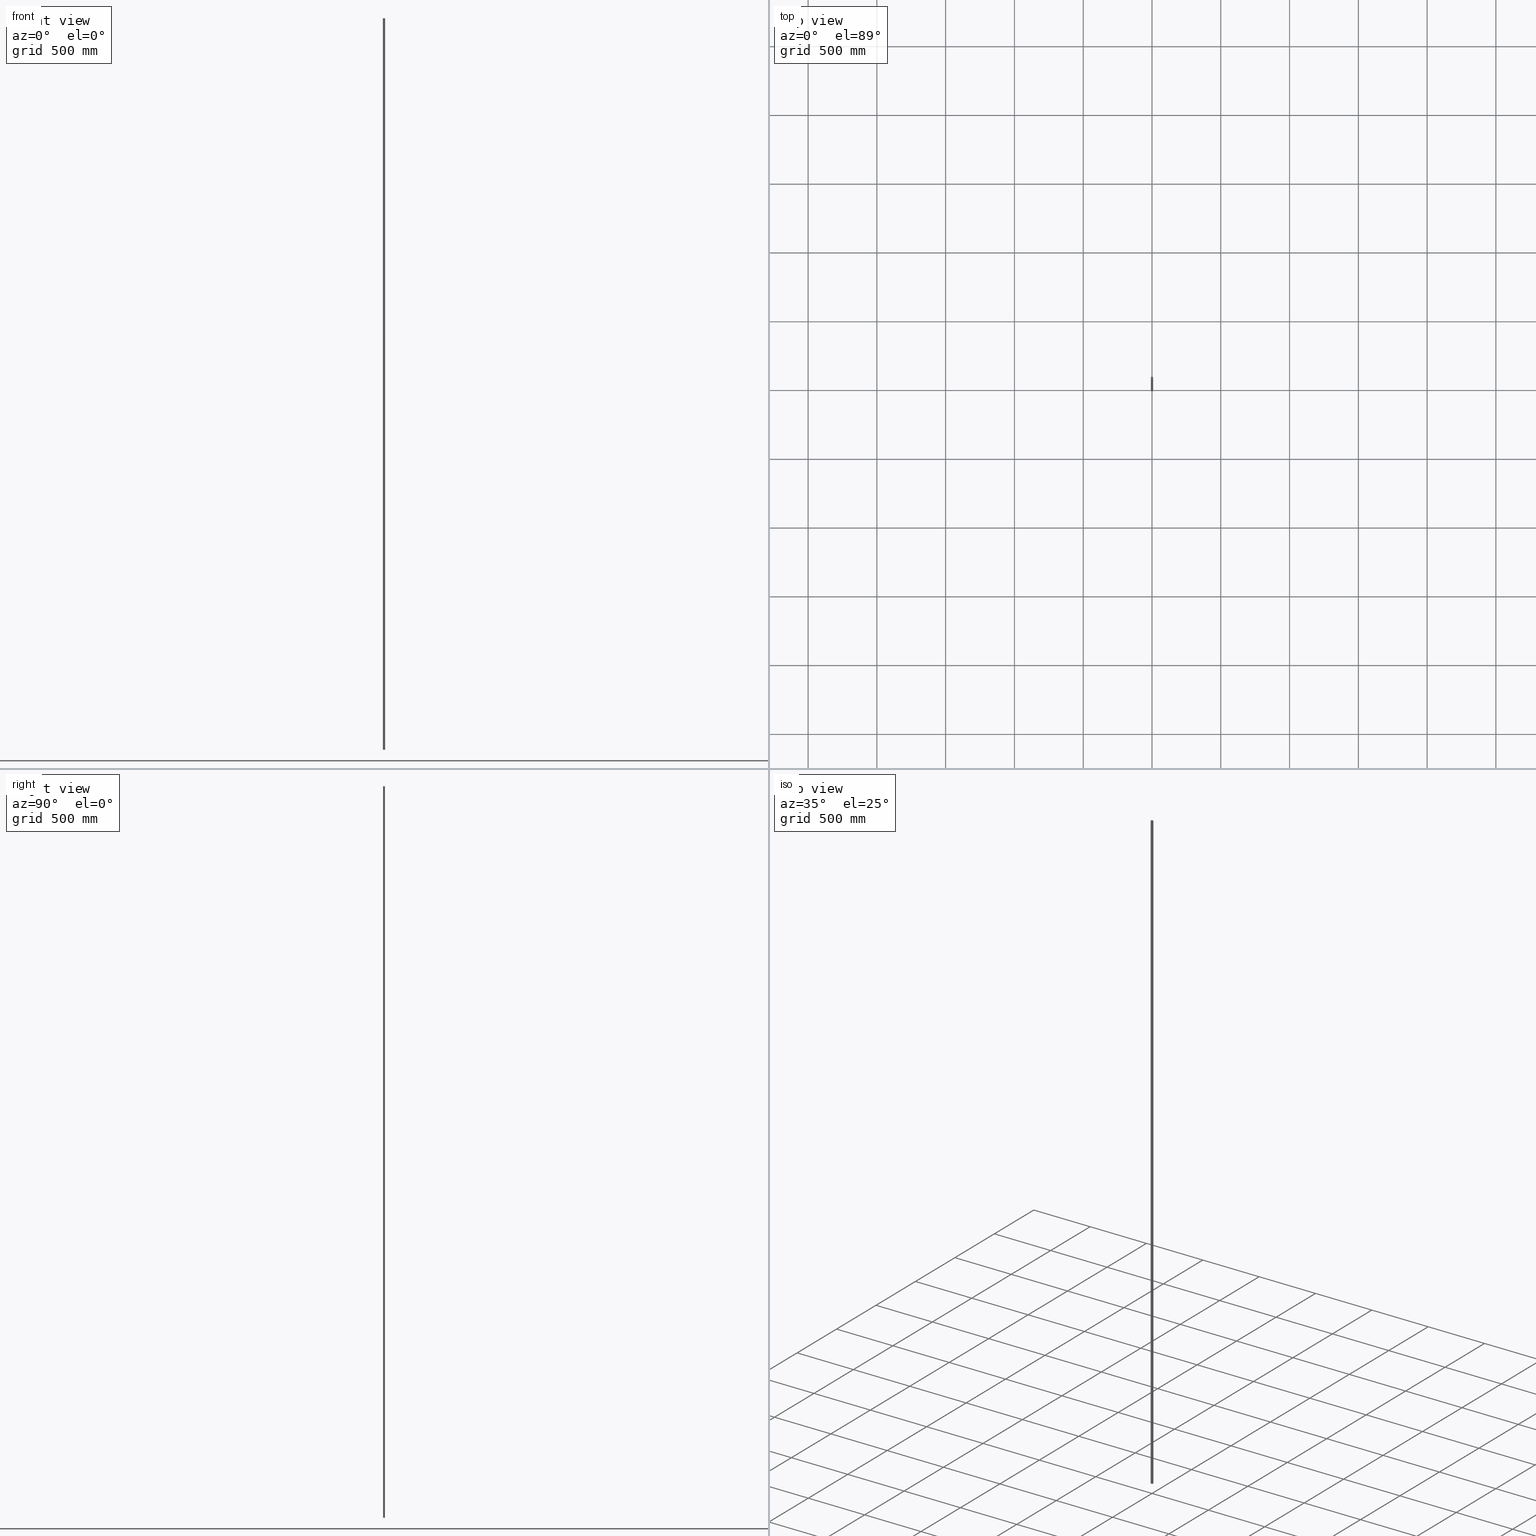
[diagram: canonical four-view strip — front | top / right | iso, engineering-drawing reading convention]
A machine part, canonical four-view strip (front | top / right | iso — engineering-drawing reading convention). The complete STEP part file that produces these views, byte-faithful:
ISO-10303-21;
HEADER;
FILE_DESCRIPTION (( 'STEP AP203' ),
    '1' );
FILE_NAME ('Single Port PVC Conduit.STEP',
    '2014-01-24T23:48:12',
    ( 'John Massey' ),
    ( 'Microsoft' ),
    'SwSTEP 2.0',
    'SolidWorks 2014',
    '' );
FILE_SCHEMA (( 'CONFIG_CONTROL_DESIGN' ));
ENDSEC;

DATA;
#1 = AXIS2_PLACEMENT_3D ( 'NONE', #442, #169, #406 ) ;
#2 = CARTESIAN_POINT ( 'NONE',  ( 5.999999999999996400, -4.800000000000001600, 2658.500000000000000 ) ) ;
#3 = CARTESIAN_POINT ( 'NONE',  ( -6.800000000000000700, 3.999999999999994200, -2658.500000000000000 ) ) ;
#4 = CARTESIAN_POINT ( 'NONE',  ( 6.800000000000000700, 3.999999999999994200, -2658.500000000000000 ) ) ;
#5 = CIRCLE ( 'NONE', #115, 0.8000000000000003800 ) ;
#6 = CARTESIAN_POINT ( 'NONE',  ( 5.999999999999994700, 4.799999999999999800, -2658.500000000000000 ) ) ;
#7 = CARTESIAN_POINT ( 'NONE',  ( -7.999999999999998200, -6.000000000000000900, 2658.500000000000000 ) ) ;
#8 = CC_DESIGN_PERSON_AND_ORGANIZATION_ASSIGNMENT ( #443, #189, ( #448 ) ) ;
#9 = ORIENTED_EDGE ( 'NONE', *, *, #149, .T. ) ;
#10 = VECTOR ( 'NONE', #369, 1000.000000000000000 ) ;
#11 = CARTESIAN_POINT ( 'NONE',  ( -6.800000000000000700, 3.999999999999994200, 2658.500000000000000 ) ) ;
#12 = VECTOR ( 'NONE', #168, 1000.000000000000000 ) ;
#13 = EDGE_CURVE ( 'NONE', #184, #203, #468, .T. ) ;
#14 = APPROVAL_PERSON_ORGANIZATION ( #350, #53, #496 ) ;
#15 = CARTESIAN_POINT ( 'NONE',  ( 0.0000000000000000000, 0.0000000000000000000, 0.0000000000000000000 ) ) ;
#16 = ADVANCED_FACE ( 'NONE', ( #355 ), #45, .F. ) ;
#17 = ORIENTED_EDGE ( 'NONE', *, *, #78, .T. ) ;
#18 = DIRECTION ( 'NONE',  ( 0.0000000000000000000, 0.0000000000000000000, 1.000000000000000000 ) ) ;
#19 = LINE ( 'NONE', #176, #10 ) ;
#20 = ORIENTED_EDGE ( 'NONE', *, *, #192, .T. ) ;
#21 = PERSON_AND_ORGANIZATION_ROLE ( 'design_supplier' ) ;
#22 = LINE ( 'NONE', #480, #430 ) ;
#23 = ADVANCED_FACE ( 'NONE', ( #258 ), #348, .F. ) ;
#24 = AXIS2_PLACEMENT_3D ( 'NONE', #405, #48, #319 ) ;
#25 = ORIENTED_EDGE ( 'NONE', *, *, #501, .T. ) ;
#26 = VECTOR ( 'NONE', #488, 1000.000000000000000 ) ;
#27 = EDGE_CURVE ( 'NONE', #203, #79, #457, .T. ) ;
#28 = FACE_OUTER_BOUND ( 'NONE', #224, .T. ) ;
#29 = DIRECTION ( 'NONE',  ( -1.000000000000000000, 0.0000000000000000000, 0.0000000000000000000 ) ) ;
#30 = VERTEX_POINT ( 'NONE', #323 ) ;
#31 = ORIENTED_EDGE ( 'NONE', *, *, #206, .T. ) ;
#32 = AXIS2_PLACEMENT_3D ( 'NONE', #289, #492, #487 ) ;
#33 = CARTESIAN_POINT ( 'NONE',  ( -6.799999999999998900, -3.999999999999995600, 2658.500000000000000 ) ) ;
#34 = VECTOR ( 'NONE', #483, 1000.000000000000000 ) ;
#35 = CALENDAR_DATE ( 2014, 25, 1 ) ;
#36 = LINE ( 'NONE', #491, #229 ) ;
#37 = CC_DESIGN_DATE_AND_TIME_ASSIGNMENT ( #214, #456, ( #448 ) ) ;
#38 = CIRCLE ( 'NONE', #377, 0.8000000000000003800 ) ;
#39 = DIRECTION ( 'NONE',  ( -1.000000000000000000, -0.0000000000000000000, -0.0000000000000000000 ) ) ;
#40 = EDGE_CURVE ( 'NONE', #429, #184, #63, .T. ) ;
#41 = CARTESIAN_POINT ( 'NONE',  ( 5.999999999999996400, -4.800000000000001600, 2658.500000000000000 ) ) ;
#42 = ORIENTED_EDGE ( 'NONE', *, *, #52, .T. ) ;
#43 = EDGE_LOOP ( 'NONE', ( #497, #363, #137, #31 ) ) ;
#44 = DIRECTION ( 'NONE',  ( 0.0000000000000000000, 0.0000000000000000000, 1.000000000000000000 ) ) ;
#45 = CYLINDRICAL_SURFACE ( 'NONE', #32, 0.8000000000000003800 ) ;
#46 = DIRECTION ( 'NONE',  ( -1.000000000000000000, 0.0000000000000000000, 0.0000000000000000000 ) ) ;
#47 = DATE_AND_TIME ( #111, #242 ) ;
#48 = DIRECTION ( 'NONE',  ( -1.000000000000000000, 0.0000000000000000000, 0.0000000000000000000 ) ) ;
#49 = AXIS2_PLACEMENT_3D ( 'NONE', #51, #325, #97 ) ;
#50 = ORIENTED_EDGE ( 'NONE', *, *, #108, .T. ) ;
#51 = CARTESIAN_POINT ( 'NONE',  ( -6.000000000000000000, 4.000000000000000000, 2658.500000000000000 ) ) ;
#52 = EDGE_CURVE ( 'NONE', #267, #75, #246, .T. ) ;
#53 = APPROVAL ( #225, 'UNSPECIFIED' ) ;
#54 = LINE ( 'NONE', #156, #484 ) ;
#55 = CARTESIAN_POINT ( 'NONE',  ( 8.000000000000000000, -6.000000000000000900, 2658.500000000000000 ) ) ;
#56 = DIRECTION ( 'NONE',  ( 1.000000000000000000, 1.445602896647339200E-016, -0.0000000000000000000 ) ) ;
#57 = ADVANCED_FACE ( 'NONE', ( #441 ), #408, .F. ) ;
#58 = VERTEX_POINT ( 'NONE', #172 ) ;
#59 =( LENGTH_UNIT ( ) NAMED_UNIT ( * ) SI_UNIT ( .MILLI., .METRE. ) );
#60 = ORIENTED_EDGE ( 'NONE', *, *, #68, .F. ) ;
#61 = MECHANICAL_CONTEXT ( 'NONE', #257, 'mechanical' ) ;
#62 = AXIS2_PLACEMENT_3D ( 'NONE', #174, #131, #447 ) ;
#63 = LINE ( 'NONE', #96, #34 ) ;
#64 = PERSON_AND_ORGANIZATION_ROLE ( 'classification_officer' ) ;
#65 = CYLINDRICAL_SURFACE ( 'NONE', #317, 0.8000000000000003800 ) ;
#66 = ORIENTED_EDGE ( 'NONE', *, *, #217, .T. ) ;
#67 = FACE_OUTER_BOUND ( 'NONE', #43, .T. ) ;
#68 = EDGE_CURVE ( 'NONE', #145, #79, #335, .T. ) ;
#69 = DIRECTION ( 'NONE',  ( 0.0000000000000000000, -0.0000000000000000000, -1.000000000000000000 ) ) ;
#70 = ORIENTED_EDGE ( 'NONE', *, *, #108, .F. ) ;
#71 = DIRECTION ( 'NONE',  ( 0.0000000000000000000, 0.0000000000000000000, 1.000000000000000000 ) ) ;
#72 = ORIENTED_EDGE ( 'NONE', *, *, #52, .F. ) ;
#73 = LOCAL_TIME ( 9, 48, 12.00000000000000000, #401 ) ;
#74 = PLANE ( 'NONE',  #349 ) ;
#75 = VERTEX_POINT ( 'NONE', #249 ) ;
#76 = AXIS2_PLACEMENT_3D ( 'NONE', #95, #365, #129 ) ;
#77 = VECTOR ( 'NONE', #354, 1000.000000000000000 ) ;
#78 = EDGE_CURVE ( 'NONE', #58, #75, #22, .T. ) ;
#79 = VERTEX_POINT ( 'NONE', #210 ) ;
#80 = VECTOR ( 'NONE', #444, 1000.000000000000000 ) ;
#81 = CARTESIAN_POINT ( 'NONE',  ( 6.800000000000002500, -3.999999999999995600, 2658.500000000000000 ) ) ;
#82 = CARTESIAN_POINT ( 'NONE',  ( 6.000000000000001800, -4.000000000000000900, 2658.500000000000000 ) ) ;
#83 = ORIENTED_EDGE ( 'NONE', *, *, #306, .F. ) ;
#84 = VERTEX_POINT ( 'NONE', #4 ) ;
#85 = AXIS2_PLACEMENT_3D ( 'NONE', #128, #93, #320 ) ;
#86 = PERSON_AND_ORGANIZATION ( #202, #142 ) ;
#87 = DIRECTION ( 'NONE',  ( -0.0000000000000000000, -0.0000000000000000000, -1.000000000000000000 ) ) ;
#88 = EDGE_LOOP ( 'NONE', ( #338, #276, #481, #279 ) ) ;
#89 = DIRECTION ( 'NONE',  ( -0.0000000000000000000, -0.0000000000000000000, -1.000000000000000000 ) ) ;
#90 = ORIENTED_EDGE ( 'NONE', *, *, #100, .T. ) ;
#91 = CARTESIAN_POINT ( 'NONE',  ( -7.999999999999998200, -6.000000000000000900, 2658.500000000000000 ) ) ;
#92 = PRODUCT_DEFINITION_FORMATION_WITH_SPECIFIED_SOURCE ( 'ANY', '', #310, .NOT_KNOWN. ) ;
#93 = DIRECTION ( 'NONE',  ( 0.0000000000000000000, 1.000000000000000000, 0.0000000000000000000 ) ) ;
#94 = VECTOR ( 'NONE', #388, 1000.000000000000000 ) ;
#95 = CARTESIAN_POINT ( 'NONE',  ( 6.800000000000000700, 3.999999999999994200, 2658.500000000000000 ) ) ;
#96 = CARTESIAN_POINT ( 'NONE',  ( -6.800000000000000700, 3.999999999999994200, 2658.500000000000000 ) ) ;
#97 = DIRECTION ( 'NONE',  ( 1.000000000000000000, 0.0000000000000000000, 0.0000000000000000000 ) ) ;
#98 = MANIFOLD_SOLID_BREP ( 'Extrude1', #506 ) ;
#99 = DIRECTION ( 'NONE',  ( -0.0000000000000000000, 0.0000000000000000000, 1.000000000000000000 ) ) ;
#100 = EDGE_CURVE ( 'NONE', #429, #332, #127, .T. ) ;
#101 = EDGE_LOOP ( 'NONE', ( #150, #295, #357, #269 ) ) ;
#102 = DIRECTION ( 'NONE',  ( 0.0000000000000000000, 0.0000000000000000000, 1.000000000000000000 ) ) ;
#103 = APPLICATION_CONTEXT ( 'configuration controlled 3d designs of mechanical parts and assemblies' ) ;
#104 = EDGE_LOOP ( 'NONE', ( #504, #83, #114, #394 ) ) ;
#105 = APPROVAL_STATUS ( 'not_yet_approved' ) ;
#106 = LINE ( 'NONE', #112, #301 ) ;
#107 = CALENDAR_DATE ( 2014, 25, 1 ) ;
#108 = EDGE_CURVE ( 'NONE', #308, #154, #237, .T. ) ;
#109 = ORIENTED_EDGE ( 'NONE', *, *, #278, .F. ) ;
#110 = CYLINDRICAL_SURFACE ( 'NONE', #509, 0.8000000000000003800 ) ;
#111 = CALENDAR_DATE ( 2014, 25, 1 ) ;
#112 = CARTESIAN_POINT ( 'NONE',  ( -6.799999999999998900, -3.999999999999995600, 2658.500000000000000 ) ) ;
#113 = DESIGN_CONTEXT ( 'detailed design', #103, 'design' ) ;
#114 = ORIENTED_EDGE ( 'NONE', *, *, #254, .T. ) ;
#115 = AXIS2_PLACEMENT_3D ( 'NONE', #502, #266, #29 ) ;
#116 = DIRECTION ( 'NONE',  ( 1.000000000000000000, 2.168404344971011600E-016, -0.0000000000000000000 ) ) ;
#117 = ORIENTED_EDGE ( 'NONE', *, *, #438, .T. ) ;
#118 = VECTOR ( 'NONE', #89, 1000.000000000000000 ) ;
#119 = EDGE_CURVE ( 'NONE', #372, #427, #318, .T. ) ;
#120 = DIRECTION ( 'NONE',  ( -1.000000000000000000, 0.0000000000000000000, 0.0000000000000000000 ) ) ;
#121 = PRODUCT_DEFINITION_SHAPE ( 'NONE', 'NONE',  #448 ) ;
#122 = CARTESIAN_POINT ( 'NONE',  ( 6.800000000000000700, 3.999999999999994200, 2658.500000000000000 ) ) ;
#123 = EDGE_LOOP ( 'NONE', ( #235, #420, #186, #170 ) ) ;
#124 = CARTESIAN_POINT ( 'NONE',  ( -5.999999999999994700, 4.799999999999999800, 2658.500000000000000 ) ) ;
#125 = DIRECTION ( 'NONE',  ( -0.0000000000000000000, -0.0000000000000000000, -1.000000000000000000 ) ) ;
#126 = PLANE ( 'NONE',  #198 ) ;
#127 = LINE ( 'NONE', #508, #359 ) ;
#128 = CARTESIAN_POINT ( 'NONE',  ( -7.999999999999998200, -6.000000000000000900, 2658.500000000000000 ) ) ;
#129 = DIRECTION ( 'NONE',  ( 2.168404344971011600E-016, -1.000000000000000000, 0.0000000000000000000 ) ) ;
#130 = EDGE_LOOP ( 'NONE', ( #17, #72, #157, #66 ) ) ;
#131 = DIRECTION ( 'NONE',  ( -0.0000000000000000000, -0.0000000000000000000, -1.000000000000000000 ) ) ;
#132 = DIRECTION ( 'NONE',  ( 1.000000000000000000, 0.0000000000000000000, 0.0000000000000000000 ) ) ;
#133 = EDGE_CURVE ( 'NONE', #297, #470, #5, .T. ) ;
#134 = LINE ( 'NONE', #407, #12 ) ;
#135 = PERSON_AND_ORGANIZATION ( #202, #142 ) ;
#136 = CARTESIAN_POINT ( 'NONE',  ( -8.000000000000000000, 5.999999999999999100, 2658.500000000000000 ) ) ;
#137 = ORIENTED_EDGE ( 'NONE', *, *, #240, .T. ) ;
#138 = ADVANCED_FACE ( 'NONE', ( #311 ), #126, .T. ) ;
#139 = ORIENTED_EDGE ( 'NONE', *, *, #206, .F. ) ;
#140 = APPROVAL_STATUS ( 'not_yet_approved' ) ;
#141 = VECTOR ( 'NONE', #285, 1000.000000000000000 ) ;
#142 = ORGANIZATION ( 'UNSPECIFIED', 'UNSPECIFIED', '' ) ;
#143 = LOCAL_TIME ( 9, 48, 12.00000000000000000, #196 ) ;
#144 = ADVANCED_FACE ( 'NONE', ( #211 ), #463, .T. ) ;
#145 = VERTEX_POINT ( 'NONE', #343 ) ;
#146 = VECTOR ( 'NONE', #87, 1000.000000000000000 ) ;
#147 = APPROVAL_PERSON_ORGANIZATION ( #303, #471, #421 ) ;
#148 = CARTESIAN_POINT ( 'NONE',  ( -5.999999999999992900, -4.800000000000001600, 2658.500000000000000 ) ) ;
#149 = EDGE_CURVE ( 'NONE', #455, #30, #510, .T. ) ;
#150 = ORIENTED_EDGE ( 'NONE', *, *, #119, .T. ) ;
#151 = DIRECTION ( 'NONE',  ( 0.0000000000000000000, 1.000000000000000000, 0.0000000000000000000 ) ) ;
#152 = VERTEX_POINT ( 'NONE', #268 ) ;
#153 = DIRECTION ( 'NONE',  ( -0.0000000000000000000, -0.0000000000000000000, -1.000000000000000000 ) ) ;
#154 = VERTEX_POINT ( 'NONE', #194 ) ;
#155 = VECTOR ( 'NONE', #366, 1000.000000000000000 ) ;
#156 = CARTESIAN_POINT ( 'NONE',  ( -5.999999999999992900, -4.800000000000001600, -2658.500000000000000 ) ) ;
#157 = ORIENTED_EDGE ( 'NONE', *, *, #240, .F. ) ;
#158 = AXIS2_PLACEMENT_3D ( 'NONE', #7, #368, #132 ) ;
#159 = ORIENTED_EDGE ( 'NONE', *, *, #424, .T. ) ;
#160 = VECTOR ( 'NONE', #39, 1000.000000000000000 ) ;
#161 = EDGE_CURVE ( 'NONE', #184, #145, #106, .T. ) ;
#162 = CARTESIAN_POINT ( 'NONE',  ( 8.000000000000000000, 5.999999999999999100, 2658.500000000000000 ) ) ;
#163 = ORIENTED_EDGE ( 'NONE', *, *, #424, .F. ) ;
#164 = DIRECTION ( 'NONE',  ( -0.0000000000000000000, -0.0000000000000000000, -1.000000000000000000 ) ) ;
#165 = ORIENTED_EDGE ( 'NONE', *, *, #232, .T. ) ;
#166 = DIRECTION ( 'NONE',  ( 0.0000000000000000000, -1.000000000000000000, 0.0000000000000000000 ) ) ;
#167 = DATE_AND_TIME ( #35, #143 ) ;
#168 = DIRECTION ( 'NONE',  ( -0.0000000000000000000, -0.0000000000000000000, -1.000000000000000000 ) ) ;
#169 = DIRECTION ( 'NONE',  ( 0.0000000000000000000, 0.0000000000000000000, 1.000000000000000000 ) ) ;
#170 = ORIENTED_EDGE ( 'NONE', *, *, #306, .T. ) ;
#171 = CARTESIAN_POINT ( 'NONE',  ( -5.999999999999994700, 4.799999999999999800, -2658.500000000000000 ) ) ;
#172 = CARTESIAN_POINT ( 'NONE',  ( 8.000000000000000000, -6.000000000000000900, -2658.500000000000000 ) ) ;
#173 = CARTESIAN_POINT ( 'NONE',  ( -5.999999999999994700, 4.799999999999999800, 2658.500000000000000 ) ) ;
#174 = CARTESIAN_POINT ( 'NONE',  ( 6.000000000000001800, -4.000000000000000900, 2658.500000000000000 ) ) ;
#175 = VECTOR ( 'NONE', #274, 1000.000000000000000 ) ;
#176 = CARTESIAN_POINT ( 'NONE',  ( 5.999999999999994700, 4.799999999999999800, 2658.500000000000000 ) ) ;
#177 = PERSON_AND_ORGANIZATION ( #202, #142 ) ;
#178 = DATE_AND_TIME ( #337, #73 ) ;
#179 = CARTESIAN_POINT ( 'NONE',  ( 5.999999999999996400, -4.800000000000001600, -2658.500000000000000 ) ) ;
#180 = ORIENTED_EDGE ( 'NONE', *, *, #192, .F. ) ;
#181 = PLANE ( 'NONE',  #262 ) ;
#182 = EDGE_CURVE ( 'NONE', #203, #255, #227, .T. ) ;
#183 = ADVANCED_FACE ( 'NONE', ( #201 ), #65, .F. ) ;
#184 = VERTEX_POINT ( 'NONE', #33 ) ;
#185 =( NAMED_UNIT ( * ) SI_UNIT ( $, .STERADIAN. ) SOLID_ANGLE_UNIT ( ) );
#186 = ORIENTED_EDGE ( 'NONE', *, *, #182, .T. ) ;
#187 = ADVANCED_BREP_SHAPE_REPRESENTATION ( 'Single Port PVC Conduit', ( #98, #396 ), #286 ) ;
#188 = APPROVAL_DATE_TIME ( #167, #471 ) ;
#189 = PERSON_AND_ORGANIZATION_ROLE ( 'creator' ) ;
#190 = ADVANCED_FACE ( 'NONE', ( #272 ), #74, .T. ) ;
#191 = LINE ( 'NONE', #469, #409 ) ;
#192 = EDGE_CURVE ( 'NONE', #30, #84, #191, .T. ) ;
#193 = LINE ( 'NONE', #173, #397 ) ;
#194 = CARTESIAN_POINT ( 'NONE',  ( -5.999999999999994700, 4.799999999999999800, -2658.500000000000000 ) ) ;
#195 = ORIENTED_EDGE ( 'NONE', *, *, #119, .F. ) ;
#196 = COORDINATED_UNIVERSAL_TIME_OFFSET ( 10, 0, .AHEAD. ) ;
#197 = CARTESIAN_POINT ( 'NONE',  ( -5.999999999999992900, -4.800000000000001600, 2658.500000000000000 ) ) ;
#198 = AXIS2_PLACEMENT_3D ( 'NONE', #231, #305, #69 ) ;
#199 = CARTESIAN_POINT ( 'NONE',  ( -8.000000000000000000, 5.999999999999999100, 2658.500000000000000 ) ) ;
#200 = ORIENTED_EDGE ( 'NONE', *, *, #452, .T. ) ;
#201 = FACE_OUTER_BOUND ( 'NONE', #324, .T. ) ;
#202 = PERSON ( 'UNSPECIFIED', 'UNSPECIFIED', 'UNSPECIFIED', ('UNSPECIFIED'), ('UNSPECIFIED'), ('UNSPECIFIED') ) ;
#203 = VERTEX_POINT ( 'NONE', #513 ) ;
#204 = CARTESIAN_POINT ( 'NONE',  ( 8.000000000000000000, 5.999999999999999100, 2658.500000000000000 ) ) ;
#205 = ORIENTED_EDGE ( 'NONE', *, *, #452, .F. ) ;
#206 = EDGE_CURVE ( 'NONE', #267, #503, #395, .T. ) ;
#207 = CALENDAR_DATE ( 2014, 25, 1 ) ;
#208 = CARTESIAN_POINT ( 'NONE',  ( -7.999999999999998200, -6.000000000000000900, 2658.500000000000000 ) ) ;
#209 = ORIENTED_EDGE ( 'NONE', *, *, #100, .F. ) ;
#210 = CARTESIAN_POINT ( 'NONE',  ( -5.999999999999992900, -4.800000000000001600, -2658.500000000000000 ) ) ;
#211 = FACE_OUTER_BOUND ( 'NONE', #123, .T. ) ;
#212 = CARTESIAN_POINT ( 'NONE',  ( 8.000000000000000000, 5.999999999999999100, 2658.500000000000000 ) ) ;
#213 = AXIS2_PLACEMENT_3D ( 'NONE', #253, #99, #371 ) ;
#214 = DATE_AND_TIME ( #107, #511 ) ;
#215 = DIRECTION ( 'NONE',  ( -1.000000000000000000, 0.0000000000000000000, 0.0000000000000000000 ) ) ;
#216 = CARTESIAN_POINT ( 'NONE',  ( 6.800000000000000700, 3.999999999999994200, 2658.500000000000000 ) ) ;
#217 = EDGE_CURVE ( 'NONE', #437, #58, #287, .T. ) ;
#218 = DIRECTION ( 'NONE',  ( 0.0000000000000000000, 0.0000000000000000000, 1.000000000000000000 ) ) ;
#219 = CARTESIAN_POINT ( 'NONE',  ( 5.999999999999994700, 4.799999999999999800, 2658.500000000000000 ) ) ;
#220 = LINE ( 'NONE', #91, #353 ) ;
#221 = DIRECTION ( 'NONE',  ( -1.445602896647339200E-016, 1.000000000000000000, 0.0000000000000000000 ) ) ;
#222 = APPLICATION_PROTOCOL_DEFINITION ( 'international standard', 'config_control_design', 1994, #257 ) ;
#223 = VERTEX_POINT ( 'NONE', #81 ) ;
#224 = EDGE_LOOP ( 'NONE', ( #180, #507, #465, #445 ) ) ;
#225 = APPROVAL_STATUS ( 'not_yet_approved' ) ;
#226 = AXIS2_PLACEMENT_3D ( 'NONE', #307, #71, #345 ) ;
#227 = LINE ( 'NONE', #197, #94 ) ;
#228 = ORIENTED_EDGE ( 'NONE', *, *, #13, .T. ) ;
#229 = VECTOR ( 'NONE', #294, 1000.000000000000000 ) ;
#230 = LINE ( 'NONE', #2, #327 ) ;
#231 = CARTESIAN_POINT ( 'NONE',  ( -5.999999999999994700, 4.799999999999999800, 2658.500000000000000 ) ) ;
#232 = EDGE_CURVE ( 'NONE', #79, #455, #54, .T. ) ;
#233 = ORIENTED_EDGE ( 'NONE', *, *, #501, .F. ) ;
#234 = DIRECTION ( 'NONE',  ( -1.000000000000000000, 0.0000000000000000000, 0.0000000000000000000 ) ) ;
#235 = ORIENTED_EDGE ( 'NONE', *, *, #232, .F. ) ;
#236 = DIRECTION ( 'NONE',  ( -2.168404344971011600E-016, 1.000000000000000000, -0.0000000000000000000 ) ) ;
#237 = LINE ( 'NONE', #124, #118 ) ;
#238 = AXIS2_PLACEMENT_3D ( 'NONE', #328, #102, #373 ) ;
#239 = ORIENTED_EDGE ( 'NONE', *, *, #40, .T. ) ;
#240 = EDGE_CURVE ( 'NONE', #437, #267, #461, .T. ) ;
#241 = FACE_OUTER_BOUND ( 'NONE', #130, .T. ) ;
#242 = LOCAL_TIME ( 9, 48, 12.00000000000000000, #361 ) ;
#243 = DIRECTION ( 'NONE',  ( 1.445602896647339200E-016, -1.000000000000000000, 0.0000000000000000000 ) ) ;
#244 = CARTESIAN_POINT ( 'NONE',  ( -5.999999999999998200, -4.000000000000000900, 2658.500000000000000 ) ) ;
#245 = AXIS2_PLACEMENT_3D ( 'NONE', #148, #151, #426 ) ;
#246 = LINE ( 'NONE', #212, #141 ) ;
#247 = DIRECTION ( 'NONE',  ( -2.168404344971011600E-016, 1.000000000000000000, -0.0000000000000000000 ) ) ;
#248 = LOCAL_TIME ( 9, 48, 12.00000000000000000, #417 ) ;
#249 = CARTESIAN_POINT ( 'NONE',  ( 8.000000000000000000, 5.999999999999999100, -2658.500000000000000 ) ) ;
#250 = CARTESIAN_POINT ( 'NONE',  ( -8.000000000000000000, 5.999999999999999100, -2658.500000000000000 ) ) ;
#251 = CARTESIAN_POINT ( 'NONE',  ( -5.999999999999992900, -4.800000000000001600, 2658.500000000000000 ) ) ;
#252 = VECTOR ( 'NONE', #247, 1000.000000000000000 ) ;
#253 = CARTESIAN_POINT ( 'NONE',  ( -7.999999999999998200, -6.000000000000000900, -2658.500000000000000 ) ) ;
#254 = EDGE_CURVE ( 'NONE', #255, #223, #499, .T. ) ;
#255 = VERTEX_POINT ( 'NONE', #41 ) ;
#256 = EDGE_LOOP ( 'NONE', ( #163, #209, #239, #331 ) ) ;
#257 = APPLICATION_CONTEXT ( 'configuration controlled 3d designs of mechanical parts and assemblies' ) ;
#258 = FACE_OUTER_BOUND ( 'NONE', #104, .T. ) ;
#259 = PERSON_AND_ORGANIZATION_ROLE ( 'creator' ) ;
#260 = APPROVAL_PERSON_ORGANIZATION ( #458, #322, #376 ) ;
#261 = ORIENTED_EDGE ( 'NONE', *, *, #370, .F. ) ;
#262 = AXIS2_PLACEMENT_3D ( 'NONE', #136, #56, #221 ) ;
#263 = VECTOR ( 'NONE', #243, 1000.000000000000000 ) ;
#264 = EDGE_CURVE ( 'NONE', #503, #372, #340, .T. ) ;
#265 = ORIENTED_EDGE ( 'NONE', *, *, #264, .F. ) ;
#266 = DIRECTION ( 'NONE',  ( 0.0000000000000000000, 0.0000000000000000000, 1.000000000000000000 ) ) ;
#267 = VERTEX_POINT ( 'NONE', #204 ) ;
#268 = CARTESIAN_POINT ( 'NONE',  ( -7.999999999999998200, -6.000000000000000900, 2658.500000000000000 ) ) ;
#269 = ORIENTED_EDGE ( 'NONE', *, *, #264, .T. ) ;
#270 = AXIS2_PLACEMENT_3D ( 'NONE', #82, #356, #120 ) ;
#271 = CC_DESIGN_PERSON_AND_ORGANIZATION_ASSIGNMENT ( #135, #259, ( #92 ) ) ;
#272 = FACE_OUTER_BOUND ( 'NONE', #256, .T. ) ;
#273 = DIRECTION ( 'NONE',  ( -0.0000000000000000000, -0.0000000000000000000, -1.000000000000000000 ) ) ;
#274 = DIRECTION ( 'NONE',  ( -0.0000000000000000000, -0.0000000000000000000, -1.000000000000000000 ) ) ;
#275 = FACE_OUTER_BOUND ( 'NONE', #101, .T. ) ;
#276 = ORIENTED_EDGE ( 'NONE', *, *, #217, .F. ) ;
#277 = CARTESIAN_POINT ( 'NONE',  ( -8.000000000000000000, 5.999999999999999100, 2658.500000000000000 ) ) ;
#278 = EDGE_CURVE ( 'NONE', #154, #332, #38, .T. ) ;
#279 = ORIENTED_EDGE ( 'NONE', *, *, #312, .T. ) ;
#280 = ORIENTED_EDGE ( 'NONE', *, *, #13, .F. ) ;
#281 = CARTESIAN_POINT ( 'NONE',  ( -6.000000000000000000, 4.000000000000000000, -2658.500000000000000 ) ) ;
#282 = DIRECTION ( 'NONE',  ( -0.0000000000000000000, -0.0000000000000000000, -1.000000000000000000 ) ) ;
#283 = ORIENTED_EDGE ( 'NONE', *, *, #254, .F. ) ;
#284 = PLANE ( 'NONE',  #24 ) ;
#285 = DIRECTION ( 'NONE',  ( -0.0000000000000000000, -0.0000000000000000000, -1.000000000000000000 ) ) ;
#286 =( GEOMETRIC_REPRESENTATION_CONTEXT ( 3 ) GLOBAL_UNCERTAINTY_ASSIGNED_CONTEXT ( ( #512 ) ) GLOBAL_UNIT_ASSIGNED_CONTEXT ( ( #59, #418, #185 ) ) REPRESENTATION_CONTEXT ( 'NONE', 'WORKASPACE' ) );
#287 = LINE ( 'NONE', #347, #175 ) ;
#288 = DIRECTION ( 'NONE',  ( 2.168404344971011600E-016, -1.000000000000000000, 0.0000000000000000000 ) ) ;
#289 = CARTESIAN_POINT ( 'NONE',  ( -6.000000000000000000, 4.000000000000000000, 2658.500000000000000 ) ) ;
#290 = ORIENTED_EDGE ( 'NONE', *, *, #386, .T. ) ;
#291 = EDGE_CURVE ( 'NONE', #503, #152, #367, .T. ) ;
#292 = ORIENTED_EDGE ( 'NONE', *, *, #68, .T. ) ;
#293 = VECTOR ( 'NONE', #288, 1000.000000000000000 ) ;
#294 = DIRECTION ( 'NONE',  ( 1.000000000000000000, 0.0000000000000000000, 0.0000000000000000000 ) ) ;
#295 = ORIENTED_EDGE ( 'NONE', *, *, #312, .F. ) ;
#296 = CARTESIAN_POINT ( 'NONE',  ( -8.000000000000000000, 5.999999999999999100, 2658.500000000000000 ) ) ;
#297 = VERTEX_POINT ( 'NONE', #122 ) ;
#298 = DIRECTION ( 'NONE',  ( 1.000000000000000000, 0.0000000000000000000, 0.0000000000000000000 ) ) ;
#299 = SECURITY_CLASSIFICATION_LEVEL ( 'unclassified' ) ;
#300 = ADVANCED_FACE ( 'NONE', ( #434 ), #402, .F. ) ;
#301 = VECTOR ( 'NONE', #153, 1000.000000000000000 ) ;
#302 = CC_DESIGN_PERSON_AND_ORGANIZATION_ASSIGNMENT ( #462, #21, ( #92 ) ) ;
#303 = PERSON_AND_ORGANIZATION ( #202, #142 ) ;
#304 = SHAPE_DEFINITION_REPRESENTATION ( #121, #187 ) ;
#305 = DIRECTION ( 'NONE',  ( 0.0000000000000000000, -1.000000000000000000, 0.0000000000000000000 ) ) ;
#306 = EDGE_CURVE ( 'NONE', #255, #455, #230, .T. ) ;
#307 = CARTESIAN_POINT ( 'NONE',  ( 6.000000000000001800, -4.000000000000000900, -2658.500000000000000 ) ) ;
#308 = VERTEX_POINT ( 'NONE', #478 ) ;
#309 = ORIENTED_EDGE ( 'NONE', *, *, #133, .T. ) ;
#310 = PRODUCT ( 'Single Port PVC Conduit', 'Single Port PVC Conduit', '', ( #61 ) ) ;
#311 = FACE_OUTER_BOUND ( 'NONE', #315, .T. ) ;
#312 = EDGE_CURVE ( 'NONE', #152, #427, #381, .T. ) ;
#313 = LINE ( 'NONE', #479, #252 ) ;
#314 = DIRECTION ( 'NONE',  ( 1.000000000000000000, 0.0000000000000000000, 0.0000000000000000000 ) ) ;
#315 = EDGE_LOOP ( 'NONE', ( #261, #316, #290, #50 ) ) ;
#316 = ORIENTED_EDGE ( 'NONE', *, *, #438, .F. ) ;
#317 = AXIS2_PLACEMENT_3D ( 'NONE', #428, #467, #234 ) ;
#318 = LINE ( 'NONE', #382, #422 ) ;
#319 = DIRECTION ( 'NONE',  ( 0.0000000000000000000, 0.0000000000000000000, 1.000000000000000000 ) ) ;
#320 = DIRECTION ( 'NONE',  ( 0.0000000000000000000, -0.0000000000000000000, 1.000000000000000000 ) ) ;
#321 = PLANE ( 'NONE',  #76 ) ;
#322 = APPROVAL ( #105, 'UNSPECIFIED' ) ;
#323 = CARTESIAN_POINT ( 'NONE',  ( 6.800000000000002500, -3.999999999999995600, -2658.500000000000000 ) ) ;
#324 = EDGE_LOOP ( 'NONE', ( #233, #374, #309, #117 ) ) ;
#325 = DIRECTION ( 'NONE',  ( 0.0000000000000000000, 0.0000000000000000000, 1.000000000000000000 ) ) ;
#326 = CARTESIAN_POINT ( 'NONE',  ( -8.000000000000000000, 5.999999999999999100, -2658.500000000000000 ) ) ;
#327 = VECTOR ( 'NONE', #282, 1000.000000000000000 ) ;
#328 = CARTESIAN_POINT ( 'NONE',  ( 6.000000000000000000, 3.999999999999999100, -2658.500000000000000 ) ) ;
#329 = ADVANCED_FACE ( 'NONE', ( #450 ), #110, .F. ) ;
#330 = EDGE_CURVE ( 'NONE', #223, #297, #313, .T. ) ;
#331 = ORIENTED_EDGE ( 'NONE', *, *, #161, .T. ) ;
#332 = VERTEX_POINT ( 'NONE', #3 ) ;
#333 = PERSON_AND_ORGANIZATION_ROLE ( 'design_owner' ) ;
#334 = DATE_TIME_ROLE ( 'classification_date' ) ;
#335 = CIRCLE ( 'NONE', #1, 0.8000000000000003800 ) ;
#336 = ADVANCED_FACE ( 'NONE', ( #241 ), #284, .F. ) ;
#337 = CALENDAR_DATE ( 2014, 25, 1 ) ;
#338 = ORIENTED_EDGE ( 'NONE', *, *, #473, .T. ) ;
#339 = FACE_OUTER_BOUND ( 'NONE', #399, .T. ) ;
#340 = LINE ( 'NONE', #277, #472 ) ;
#341 = EDGE_CURVE ( 'NONE', #152, #437, #220, .T. ) ;
#342 = DIRECTION ( 'NONE',  ( 1.445602896647339200E-016, -1.000000000000000000, 0.0000000000000000000 ) ) ;
#343 = CARTESIAN_POINT ( 'NONE',  ( -6.799999999999998900, -3.999999999999995600, -2658.500000000000000 ) ) ;
#344 = ORIENTED_EDGE ( 'NONE', *, *, #133, .F. ) ;
#345 = DIRECTION ( 'NONE',  ( -1.000000000000000000, 0.0000000000000000000, 0.0000000000000000000 ) ) ;
#346 = ORIENTED_EDGE ( 'NONE', *, *, #330, .F. ) ;
#347 = CARTESIAN_POINT ( 'NONE',  ( 8.000000000000000000, -6.000000000000000900, 2658.500000000000000 ) ) ;
#348 = CYLINDRICAL_SURFACE ( 'NONE', #62, 0.8000000000000003800 ) ;
#349 = AXIS2_PLACEMENT_3D ( 'NONE', #505, #116, #390 ) ;
#350 = PERSON_AND_ORGANIZATION ( #202, #142 ) ;
#351 = EDGE_LOOP ( 'NONE', ( #109, #70, #495, #90 ) ) ;
#352 = CC_DESIGN_DATE_AND_TIME_ASSIGNMENT ( #389, #334, ( #412 ) ) ;
#353 = VECTOR ( 'NONE', #360, 1000.000000000000000 ) ;
#354 = DIRECTION ( 'NONE',  ( -0.0000000000000000000, 1.000000000000000000, -0.0000000000000000000 ) ) ;
#355 = FACE_OUTER_BOUND ( 'NONE', #351, .T. ) ;
#356 = DIRECTION ( 'NONE',  ( 0.0000000000000000000, 0.0000000000000000000, 1.000000000000000000 ) ) ;
#357 = ORIENTED_EDGE ( 'NONE', *, *, #291, .F. ) ;
#358 = EDGE_CURVE ( 'NONE', #223, #30, #134, .T. ) ;
#359 = VECTOR ( 'NONE', #273, 1000.000000000000000 ) ;
#360 = DIRECTION ( 'NONE',  ( 1.000000000000000000, 0.0000000000000000000, 0.0000000000000000000 ) ) ;
#361 = COORDINATED_UNIVERSAL_TIME_OFFSET ( 10, 0, .AHEAD. ) ;
#362 = ORIENTED_EDGE ( 'NONE', *, *, #40, .F. ) ;
#363 = ORIENTED_EDGE ( 'NONE', *, *, #341, .T. ) ;
#364 = CIRCLE ( 'NONE', #238, 0.8000000000000003800 ) ;
#365 = DIRECTION ( 'NONE',  ( -1.000000000000000000, -2.168404344971011600E-016, 0.0000000000000000000 ) ) ;
#366 = DIRECTION ( 'NONE',  ( -0.0000000000000000000, -0.0000000000000000000, -1.000000000000000000 ) ) ;
#367 = LINE ( 'NONE', #476, #263 ) ;
#368 = DIRECTION ( 'NONE',  ( -0.0000000000000000000, 0.0000000000000000000, 1.000000000000000000 ) ) ;
#369 = DIRECTION ( 'NONE',  ( -0.0000000000000000000, -0.0000000000000000000, -1.000000000000000000 ) ) ;
#370 = EDGE_CURVE ( 'NONE', #378, #154, #425, .T. ) ;
#371 = DIRECTION ( 'NONE',  ( 1.000000000000000000, 0.0000000000000000000, 0.0000000000000000000 ) ) ;
#372 = VERTEX_POINT ( 'NONE', #250 ) ;
#373 = DIRECTION ( 'NONE',  ( -1.000000000000000000, 0.0000000000000000000, 0.0000000000000000000 ) ) ;
#374 = ORIENTED_EDGE ( 'NONE', *, *, #419, .F. ) ;
#375 = APPLICATION_PROTOCOL_DEFINITION ( 'international standard', 'config_control_design', 1994, #103 ) ;
#376 = APPROVAL_ROLE ( '' ) ;
#377 = AXIS2_PLACEMENT_3D ( 'NONE', #281, #44, #314 ) ;
#378 = VERTEX_POINT ( 'NONE', #6 ) ;
#379 = ADVANCED_FACE ( 'NONE', ( #28 ), #321, .T. ) ;
#380 = CC_DESIGN_PERSON_AND_ORGANIZATION_ASSIGNMENT ( #177, #64, ( #412 ) ) ;
#381 = LINE ( 'NONE', #208, #146 ) ;
#382 = CARTESIAN_POINT ( 'NONE',  ( -8.000000000000000000, 5.999999999999999100, -2658.500000000000000 ) ) ;
#383 = LINE ( 'NONE', #413, #293 ) ;
#384 = ORIENTED_EDGE ( 'NONE', *, *, #386, .F. ) ;
#385 = ORIENTED_EDGE ( 'NONE', *, *, #278, .T. ) ;
#386 = EDGE_CURVE ( 'NONE', #470, #308, #193, .T. ) ;
#387 = ORIENTED_EDGE ( 'NONE', *, *, #473, .F. ) ;
#388 = DIRECTION ( 'NONE',  ( 1.000000000000000000, 0.0000000000000000000, 0.0000000000000000000 ) ) ;
#389 = DATE_AND_TIME ( #207, #248 ) ;
#390 = DIRECTION ( 'NONE',  ( -2.168404344971011600E-016, 1.000000000000000000, 0.0000000000000000000 ) ) ;
#391 = ORIENTED_EDGE ( 'NONE', *, *, #182, .F. ) ;
#392 = CC_DESIGN_APPROVAL ( #53, ( #92 ) ) ;
#393 = CIRCLE ( 'NONE', #49, 0.8000000000000003800 ) ;
#394 = ORIENTED_EDGE ( 'NONE', *, *, #358, .T. ) ;
#395 = LINE ( 'NONE', #199, #160 ) ;
#396 = AXIS2_PLACEMENT_3D ( 'NONE', #15, #18, #298 ) ;
#397 = VECTOR ( 'NONE', #410, 1000.000000000000000 ) ;
#398 = EDGE_CURVE ( 'NONE', #308, #429, #393, .T. ) ;
#399 = EDGE_LOOP ( 'NONE', ( #195, #205, #475, #387 ) ) ;
#400 = ORIENTED_EDGE ( 'NONE', *, *, #398, .F. ) ;
#401 = COORDINATED_UNIVERSAL_TIME_OFFSET ( 10, 0, .AHEAD. ) ;
#402 = PLANE ( 'NONE',  #459 ) ;
#403 = DIRECTION ( 'NONE',  ( -0.0000000000000000000, 1.000000000000000000, -0.0000000000000000000 ) ) ;
#404 = EDGE_LOOP ( 'NONE', ( #362, #400, #384, #344, #346, #283, #391, #280 ) ) ;
#405 = CARTESIAN_POINT ( 'NONE',  ( 8.000000000000000000, 5.999999999999999100, 2658.500000000000000 ) ) ;
#406 = DIRECTION ( 'NONE',  ( -1.000000000000000000, 0.0000000000000000000, 0.0000000000000000000 ) ) ;
#407 = CARTESIAN_POINT ( 'NONE',  ( 6.800000000000002500, -3.999999999999995600, 2658.500000000000000 ) ) ;
#408 = PLANE ( 'NONE',  #85 ) ;
#409 = VECTOR ( 'NONE', #236, 1000.000000000000000 ) ;
#410 = DIRECTION ( 'NONE',  ( -1.000000000000000000, -0.0000000000000000000, -0.0000000000000000000 ) ) ;
#411 = COORDINATED_UNIVERSAL_TIME_OFFSET ( 10, 0, .AHEAD. ) ;
#412 = SECURITY_CLASSIFICATION ( '', '', #299 ) ;
#413 = CARTESIAN_POINT ( 'NONE',  ( -6.800000000000000700, 3.999999999999994200, -2658.500000000000000 ) ) ;
#414 = ORIENTED_EDGE ( 'NONE', *, *, #27, .T. ) ;
#415 = DIRECTION ( 'NONE',  ( -1.000000000000000000, -0.0000000000000000000, -0.0000000000000000000 ) ) ;
#416 = ADVANCED_FACE ( 'NONE', ( #67, #433 ), #485, .T. ) ;
#417 = COORDINATED_UNIVERSAL_TIME_OFFSET ( 10, 0, .AHEAD. ) ;
#418 =( NAMED_UNIT ( * ) PLANE_ANGLE_UNIT ( ) SI_UNIT ( $, .RADIAN. ) );
#419 = EDGE_CURVE ( 'NONE', #297, #84, #474, .T. ) ;
#420 = ORIENTED_EDGE ( 'NONE', *, *, #27, .F. ) ;
#421 = APPROVAL_ROLE ( '' ) ;
#422 = VECTOR ( 'NONE', #342, 1000.000000000000000 ) ;
#423 = CC_DESIGN_PERSON_AND_ORGANIZATION_ASSIGNMENT ( #86, #333, ( #310 ) ) ;
#424 = EDGE_CURVE ( 'NONE', #332, #145, #383, .T. ) ;
#425 = LINE ( 'NONE', #171, #80 ) ;
#426 = DIRECTION ( 'NONE',  ( 0.0000000000000000000, -0.0000000000000000000, 1.000000000000000000 ) ) ;
#427 = VERTEX_POINT ( 'NONE', #449 ) ;
#428 = CARTESIAN_POINT ( 'NONE',  ( 6.000000000000000000, 3.999999999999999100, 2658.500000000000000 ) ) ;
#429 = VERTEX_POINT ( 'NONE', #11 ) ;
#430 = VECTOR ( 'NONE', #403, 1000.000000000000000 ) ;
#431 = APPROVAL_DATE_TIME ( #47, #53 ) ;
#432 = CC_DESIGN_APPROVAL ( #322, ( #412 ) ) ;
#433 = FACE_BOUND ( 'NONE', #404, .T. ) ;
#434 = FACE_OUTER_BOUND ( 'NONE', #477, .T. ) ;
#435 = DIRECTION ( 'NONE',  ( 1.000000000000000000, 0.0000000000000000000, 0.0000000000000000000 ) ) ;
#436 = CARTESIAN_POINT ( 'NONE',  ( -8.000000000000000000, 5.999999999999999100, 2658.500000000000000 ) ) ;
#437 = VERTEX_POINT ( 'NONE', #55 ) ;
#438 = EDGE_CURVE ( 'NONE', #470, #378, #19, .T. ) ;
#439 = ORIENTED_EDGE ( 'NONE', *, *, #161, .F. ) ;
#440 = DIRECTION ( 'NONE',  ( 0.0000000000000000000, -0.0000000000000000000, -1.000000000000000000 ) ) ;
#441 = FACE_OUTER_BOUND ( 'NONE', #88, .T. ) ;
#442 = CARTESIAN_POINT ( 'NONE',  ( -5.999999999999998200, -4.000000000000000900, -2658.500000000000000 ) ) ;
#443 = PERSON_AND_ORGANIZATION ( #202, #142 ) ;
#444 = DIRECTION ( 'NONE',  ( -1.000000000000000000, -0.0000000000000000000, -0.0000000000000000000 ) ) ;
#445 = ORIENTED_EDGE ( 'NONE', *, *, #419, .T. ) ;
#446 = FACE_BOUND ( 'NONE', #454, .T. ) ;
#447 = DIRECTION ( 'NONE',  ( -1.000000000000000000, 0.0000000000000000000, 0.0000000000000000000 ) ) ;
#448 = PRODUCT_DEFINITION ( 'UNKNOWN', '', #92, #113 ) ;
#449 = CARTESIAN_POINT ( 'NONE',  ( -7.999999999999998200, -6.000000000000000900, -2658.500000000000000 ) ) ;
#450 = FACE_OUTER_BOUND ( 'NONE', #493, .T. ) ;
#451 = PLANE ( 'NONE',  #213 ) ;
#452 = EDGE_CURVE ( 'NONE', #75, #372, #490, .T. ) ;
#453 = CARTESIAN_POINT ( 'NONE',  ( -5.999999999999998200, -4.000000000000000900, 2658.500000000000000 ) ) ;
#454 = EDGE_LOOP ( 'NONE', ( #385, #159, #292, #165, #9, #20, #25, #464 ) ) ;
#455 = VERTEX_POINT ( 'NONE', #179 ) ;
#456 = DATE_TIME_ROLE ( 'creation_date' ) ;
#457 = LINE ( 'NONE', #251, #155 ) ;
#458 = PERSON_AND_ORGANIZATION ( #202, #142 ) ;
#459 = AXIS2_PLACEMENT_3D ( 'NONE', #436, #166, #440 ) ;
#460 = CC_DESIGN_SECURITY_CLASSIFICATION ( #412, ( #92 ) ) ;
#461 = LINE ( 'NONE', #162, #77 ) ;
#462 = PERSON_AND_ORGANIZATION ( #202, #142 ) ;
#463 = PLANE ( 'NONE',  #245 ) ;
#464 = ORIENTED_EDGE ( 'NONE', *, *, #370, .T. ) ;
#465 = ORIENTED_EDGE ( 'NONE', *, *, #330, .T. ) ;
#466 = AXIS2_PLACEMENT_3D ( 'NONE', #453, #218, #215 ) ;
#467 = DIRECTION ( 'NONE',  ( -0.0000000000000000000, -0.0000000000000000000, -1.000000000000000000 ) ) ;
#468 = CIRCLE ( 'NONE', #466, 0.8000000000000003800 ) ;
#469 = CARTESIAN_POINT ( 'NONE',  ( 6.800000000000000700, 3.999999999999994200, -2658.500000000000000 ) ) ;
#470 = VERTEX_POINT ( 'NONE', #219 ) ;
#471 = APPROVAL ( #140, 'UNSPECIFIED' ) ;
#472 = VECTOR ( 'NONE', #164, 1000.000000000000000 ) ;
#473 = EDGE_CURVE ( 'NONE', #427, #58, #36, .T. ) ;
#474 = LINE ( 'NONE', #216, #26 ) ;
#475 = ORIENTED_EDGE ( 'NONE', *, *, #78, .F. ) ;
#476 = CARTESIAN_POINT ( 'NONE',  ( -8.000000000000000000, 5.999999999999999100, 2658.500000000000000 ) ) ;
#477 = EDGE_LOOP ( 'NONE', ( #200, #265, #139, #42 ) ) ;
#478 = CARTESIAN_POINT ( 'NONE',  ( -5.999999999999994700, 4.799999999999999800, 2658.500000000000000 ) ) ;
#479 = CARTESIAN_POINT ( 'NONE',  ( 6.800000000000000700, 3.999999999999994200, 2658.500000000000000 ) ) ;
#480 = CARTESIAN_POINT ( 'NONE',  ( 8.000000000000000000, 5.999999999999999100, -2658.500000000000000 ) ) ;
#481 = ORIENTED_EDGE ( 'NONE', *, *, #341, .F. ) ;
#482 = VECTOR ( 'NONE', #415, 1000.000000000000000 ) ;
#483 = DIRECTION ( 'NONE',  ( 2.168404344971011600E-016, -1.000000000000000000, 0.0000000000000000000 ) ) ;
#484 = VECTOR ( 'NONE', #435, 1000.000000000000000 ) ;
#485 = PLANE ( 'NONE',  #158 ) ;
#486 = PRODUCT_RELATED_PRODUCT_CATEGORY ( 'detail', '', ( #310 ) ) ;
#487 = DIRECTION ( 'NONE',  ( -1.000000000000000000, 0.0000000000000000000, 0.0000000000000000000 ) ) ;
#488 = DIRECTION ( 'NONE',  ( -0.0000000000000000000, -0.0000000000000000000, -1.000000000000000000 ) ) ;
#489 = APPROVAL_DATE_TIME ( #178, #322 ) ;
#490 = LINE ( 'NONE', #326, #482 ) ;
#491 = CARTESIAN_POINT ( 'NONE',  ( -7.999999999999998200, -6.000000000000000900, -2658.500000000000000 ) ) ;
#492 = DIRECTION ( 'NONE',  ( -0.0000000000000000000, -0.0000000000000000000, -1.000000000000000000 ) ) ;
#493 = EDGE_LOOP ( 'NONE', ( #60, #439, #228, #414 ) ) ;
#494 = ADVANCED_FACE ( 'NONE', ( #339, #446 ), #451, .F. ) ;
#495 = ORIENTED_EDGE ( 'NONE', *, *, #398, .T. ) ;
#496 = APPROVAL_ROLE ( '' ) ;
#497 = ORIENTED_EDGE ( 'NONE', *, *, #291, .T. ) ;
#498 = ADVANCED_FACE ( 'NONE', ( #275 ), #181, .F. ) ;
#499 = CIRCLE ( 'NONE', #270, 0.8000000000000003800 ) ;
#500 = CC_DESIGN_APPROVAL ( #471, ( #448 ) ) ;
#501 = EDGE_CURVE ( 'NONE', #84, #378, #364, .T. ) ;
#502 = CARTESIAN_POINT ( 'NONE',  ( 6.000000000000000000, 3.999999999999999100, 2658.500000000000000 ) ) ;
#503 = VERTEX_POINT ( 'NONE', #296 ) ;
#504 = ORIENTED_EDGE ( 'NONE', *, *, #149, .F. ) ;
#505 = CARTESIAN_POINT ( 'NONE',  ( -6.800000000000000700, 3.999999999999994200, 2658.500000000000000 ) ) ;
#506 = CLOSED_SHELL ( 'NONE', ( #416, #494, #498, #57, #336, #300, #16, #190, #329, #144, #23, #379, #183, #138 ) ) ;
#507 = ORIENTED_EDGE ( 'NONE', *, *, #358, .F. ) ;
#508 = CARTESIAN_POINT ( 'NONE',  ( -6.800000000000000700, 3.999999999999994200, 2658.500000000000000 ) ) ;
#509 = AXIS2_PLACEMENT_3D ( 'NONE', #244, #125, #46 ) ;
#510 = CIRCLE ( 'NONE', #226, 0.8000000000000003800 ) ;
#511 = LOCAL_TIME ( 9, 48, 12.00000000000000000, #411 ) ;
#512 = UNCERTAINTY_MEASURE_WITH_UNIT (LENGTH_MEASURE( 1.000000000000000100E-005 ), #59, 'distance_accuracy_value', 'NONE');
#513 = CARTESIAN_POINT ( 'NONE',  ( -5.999999999999992900, -4.800000000000001600, 2658.500000000000000 ) ) ;
ENDSEC;
END-ISO-10303-21;
